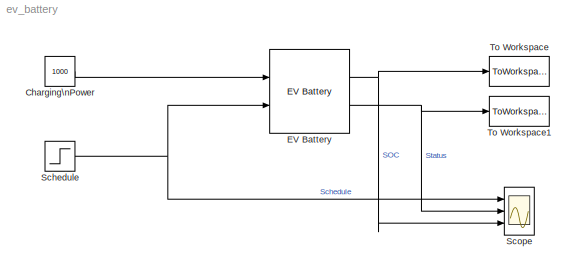
MODEL ev_battery
KIND model
BLOCK [Constant] Charging\nPower
  SID = 1
  Value = 1000
BLOCK [Reference] EV Battery  REF=CampusEnergyModeling/Electric Vehicles/EV Battery
  Ports = [2, 2]
  SID = 4
  SourceBlock = CampusEnergyModeling/Electric Vehicles/EV Battery
  SourceType = Electric Vehicle Battery
  capacity = 1000
  eff = 0.95
  initSOC = 0
BLOCK [Step] Schedule
  SID = 3
  SampleTime = 0
  Time = 1895
BLOCK [Scope] Scope
  DataFormat = StructureWithTime
  Floating = off
  LimitDataPoints = off
  NumInputPorts = 3
  Ports = [3]
  SID = 6
  SampleTime = 0
  ShowLegends = off
  YMax = 5~5~5
  YMin = -5~-5~-5
  ZoomMode = yonly
BLOCK [ToWorkspace] To Workspace
  MaxDataPoints = inf
  Ports = [1]
  SID = 2
  SampleTime = -1
  SaveFormat = Timeseries
  VariableName = batt_soc
BLOCK [ToWorkspace] To Workspace1
  MaxDataPoints = inf
  Ports = [1]
  SID = 5
  SampleTime = -1
  SaveFormat = Timeseries
  VariableName = batt_status
LINE Charging\nPower:1 -> EV Battery:1
NET EV Battery:1 -> Scope:3, To Workspace:1
NET EV Battery:2 -> Scope:2, To Workspace1:1
NET Schedule:1 -> EV Battery:2, Scope:1
note: NET lines group one-source signal fan-out (src -> all destinations, sorted); 1:1 wires keep LINE
